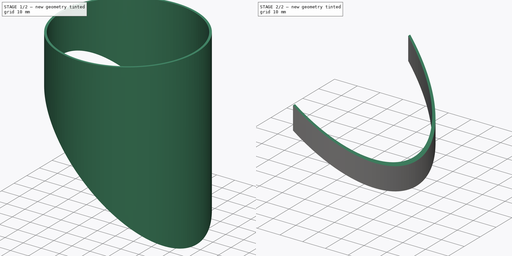
[diagram: build sequence overview — one tinted view per stage of 2, left to right]
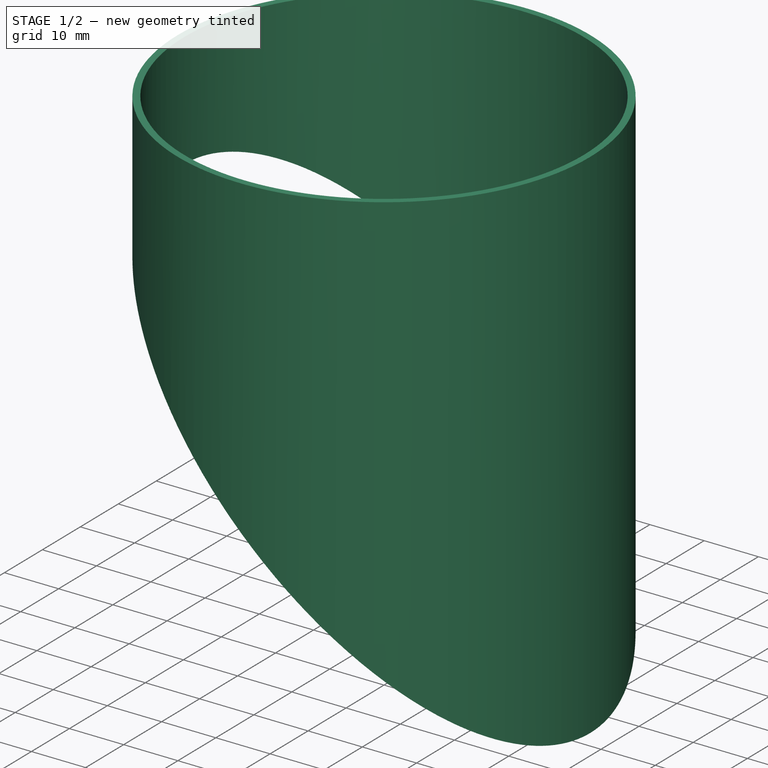
[diagram: stage 1 of 2 — iso view after this stage's code; geometry added in this stage tinted green]
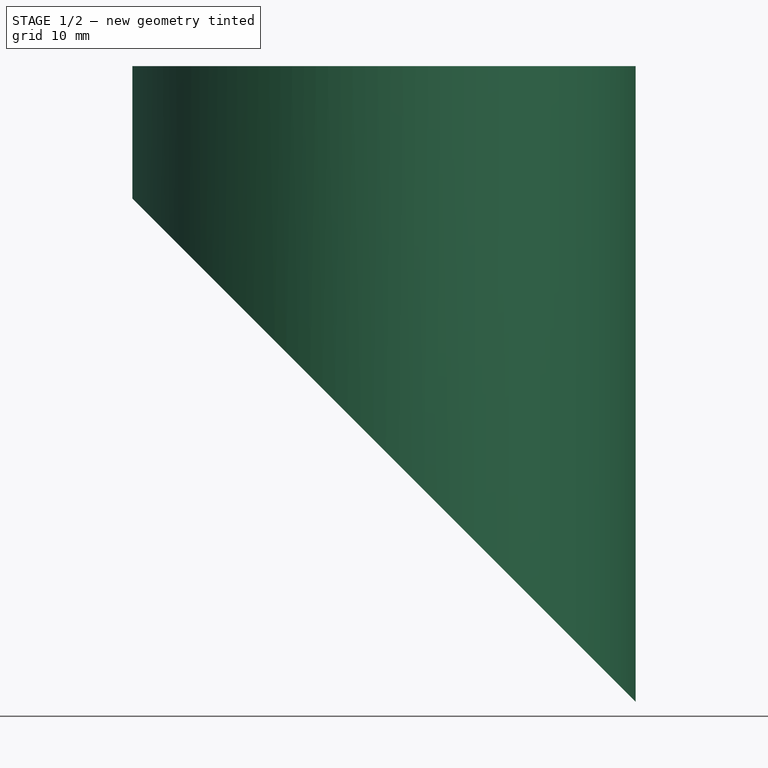
[diagram: stage 1 of 2 — front view after this stage's code; geometry added in this stage tinted green]
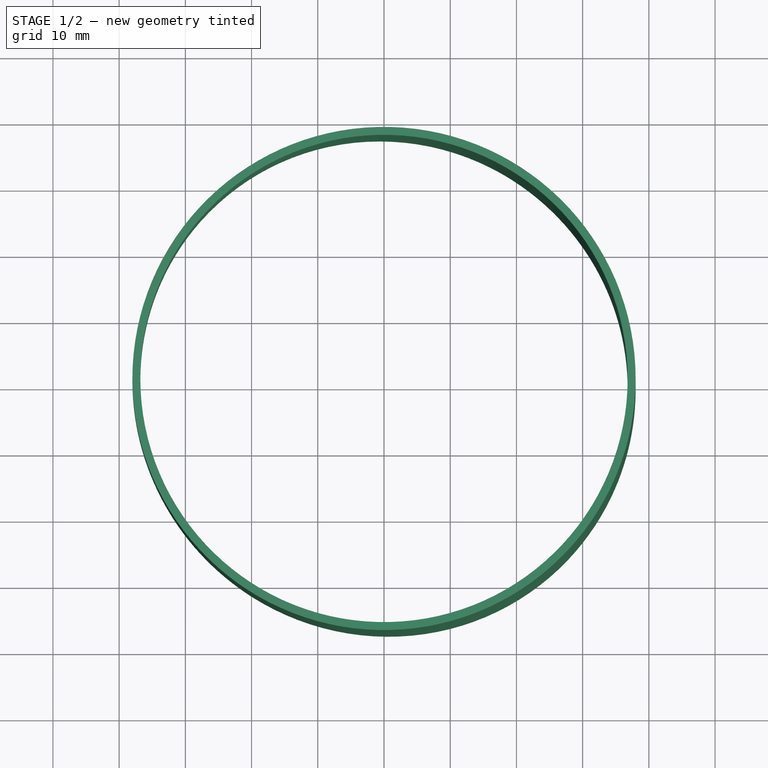
[diagram: stage 1 of 2 — top view after this stage's code; geometry added in this stage tinted green]
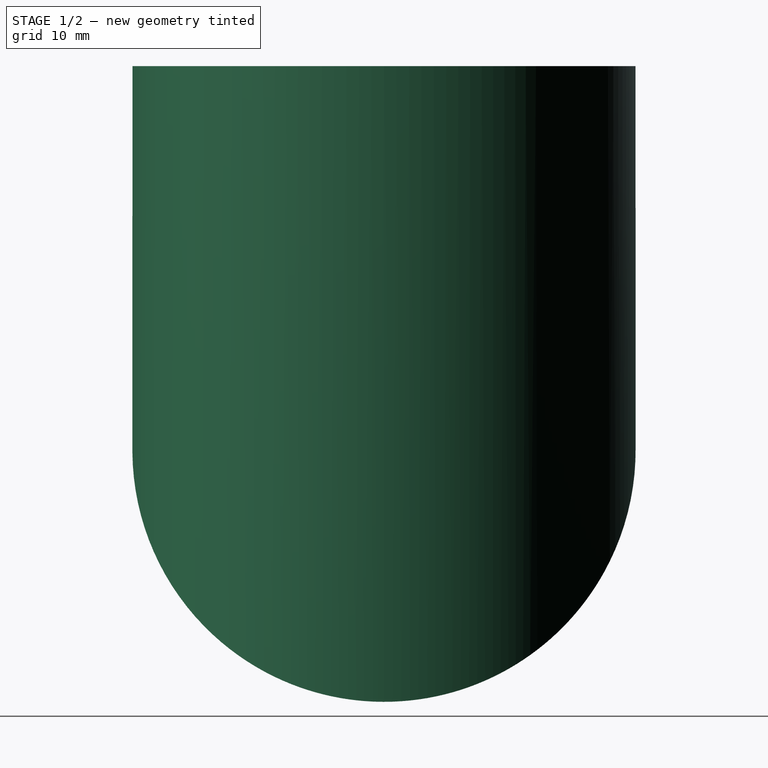
[diagram: stage 1 of 2 — right view after this stage's code; geometry added in this stage tinted green]
FCSTD DOCUMENT  (FreeCAD 0.20R28671 (Git))
Label: ConeExperiment
License: Creative Commons Attribution-NonCommercial-ShareAlike
LicenseURL: http://creativecommons.org/licenses/by-nc-sa/4.0/
objects: Sketcher::SketchObject×4, PartDesign::Plane×3, PartDesign::Pocket×3, PartDesign::Pad×1, PartDesign::Body×1
note: 16 computed .brp shape members not serialized (recipe doc carries the construction recipe); baked Part::Feature solids carry a one-line shape summary decoded from their .brp

FEATURE [Sketcher::SketchObject] Sketch
  FullyConstrained = true
  MapMode = 5
  Support = -> [XY_Plane]
  expr: Constraints[3] = .Constraints.R - 1.2mm
  sketch-geometry (2):
    g0: Circle CenterX=0 CenterY=0 CenterZ=0 NormalX=0 NormalY=0 NormalZ=1 AngleXU=0 Radius=38
    g1: Circle CenterX=0 CenterY=0 CenterZ=0 NormalX=0 NormalY=0 NormalZ=1 AngleXU=0 Radius=36.8
  constraints (4):
    c: Coincident(g0,g-1)
    c: Radius(g0) = 38  'R'
    c: Coincident(g1,g0)
    c: Radius(g1) = 36.8
FEATURE [PartDesign::Pad] Pad
  Direction = (1,1,1)
  Length = 96
  Length2 = 100
  Profile = -> Sketch
  Type = 0
  expr: Length = <<Sketch>>.Constraints.R * 2 + 20mm
FEATURE [PartDesign::Plane] DatumPlane
  AttachmentOffset = pos=(0,0,38) rot=(0,1,0;0.785398rad)
  Length = 105.675
  MapMode = 2
  Placement = pos=(0,0,38) rot=(0,1,0;0.785398rad)
  ResizeMode = 0
  Support = -> [XY_Plane]
  Width = 89.8129
  expr: .AttachmentOffset.Base.z = <<Sketch>>.Constraints.R
FEATURE [Sketcher::SketchObject] Sketch001
  FullyConstrained = true
  MapMode = 5
  Placement = pos=(0,0,38) rot=(0,1,0;0.785398rad)
  Support = -> [DatumPlane]
  expr: Constraints[6] = <<Sketch>>.Constraints.R + 1mm
  expr: Constraints[7] = sqrt(2) * <<Sketch>>.Constraints.R + 1mm
  sketch-geometry (5):
    g0: Ellipse CenterX=0 CenterY=0 CenterZ=0 NormalX=0 NormalY=0 NormalZ=1 MajorRadius=54.7401 MinorRadius=39 AngleXU=0
    g1: LineSegment StartX=54.7401 StartY=0 StartZ=0 EndX=-54.7401 EndY=0 EndZ=0
    g2: LineSegment StartX=0 StartY=39 StartZ=0 EndX=0 EndY=-39 EndZ=0
    g3: GeomPoint X=38.412 Y=0 Z=0
    g4: GeomPoint X=-38.412 Y=0 Z=0
  constraints (5):
    c: InternalAlignment(g1-g4 -> g0) x4
    c: PointOnObject(g1,g-1)
    c: Coincident(g0,g-1)
    c: DistanceY(g0,g2) = 39
    c: DistanceX(g1,g0) = 54.7401
FEATURE [PartDesign::Pocket] Pocket
  BaseFeature = -> Pad
  Direction = (0,0,-1)
  Length = 5
  Length2 = 5
  Profile = -> Sketch001
  ReferenceAxis = -> Pad [Edge2]
  Type = 1
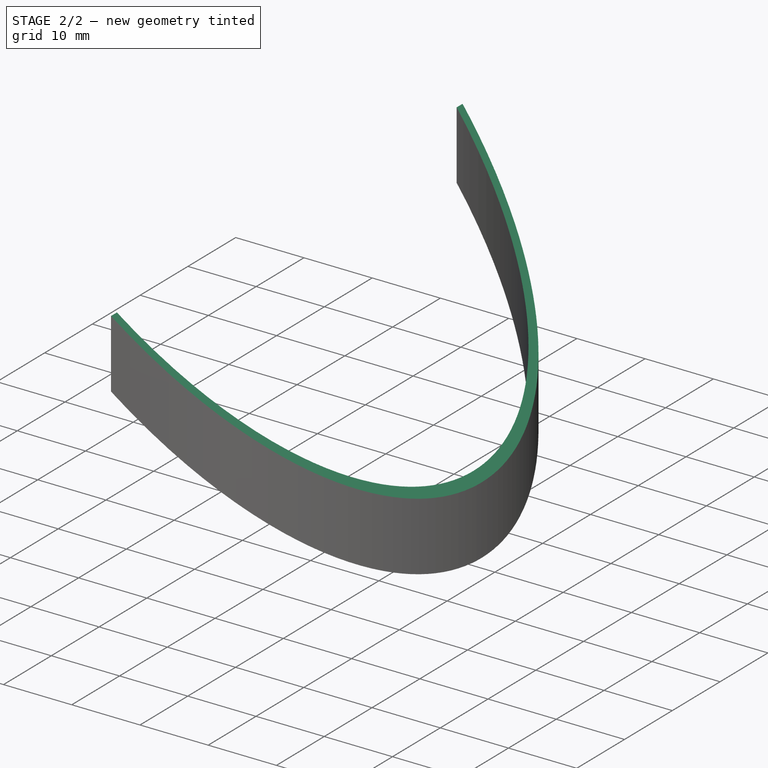
[diagram: stage 2 of 2 — iso view after this stage's code; geometry added in this stage tinted green]
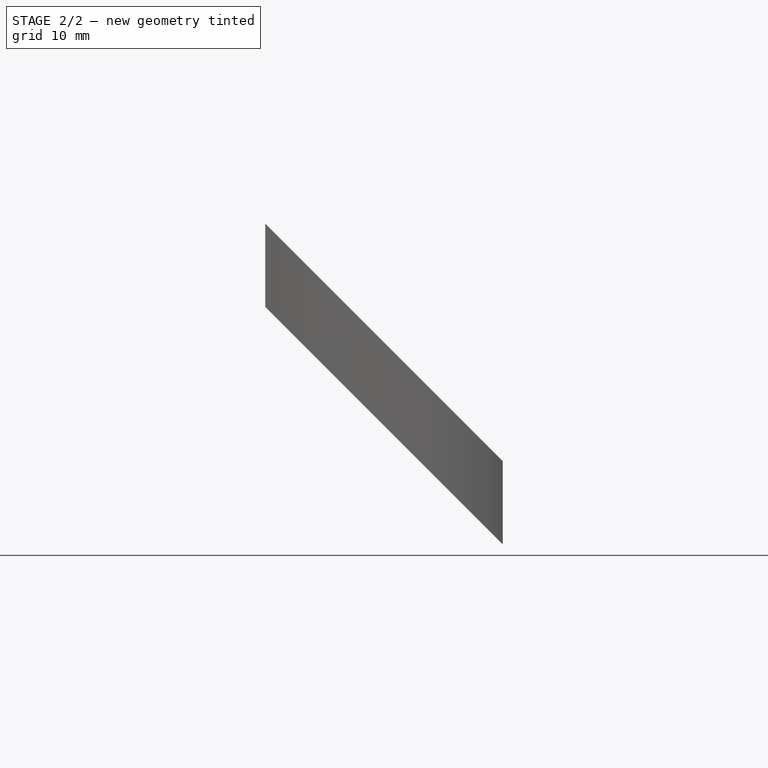
[diagram: stage 2 of 2 — front view after this stage's code; geometry added in this stage tinted green]
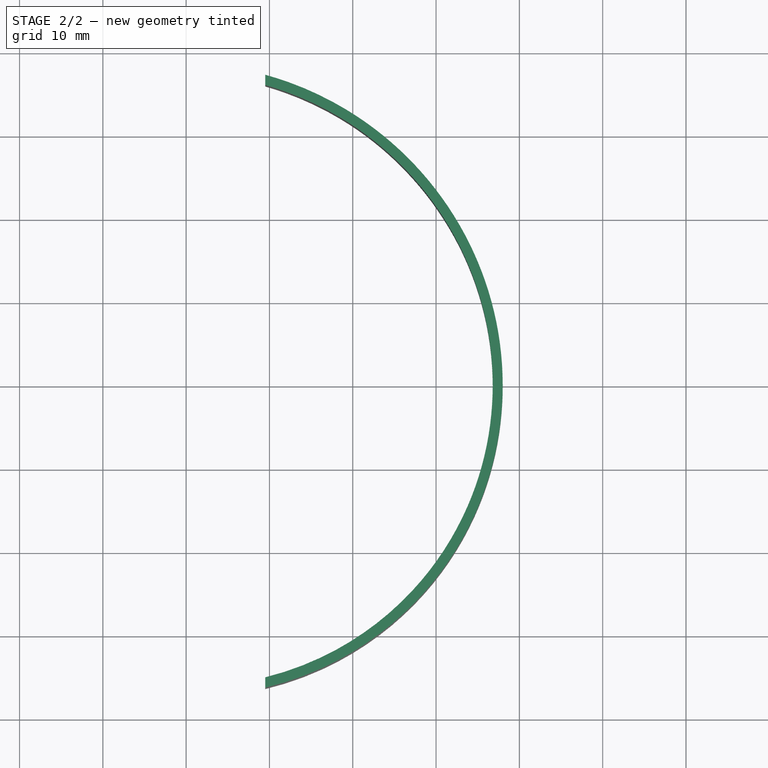
[diagram: stage 2 of 2 — top view after this stage's code; geometry added in this stage tinted green]
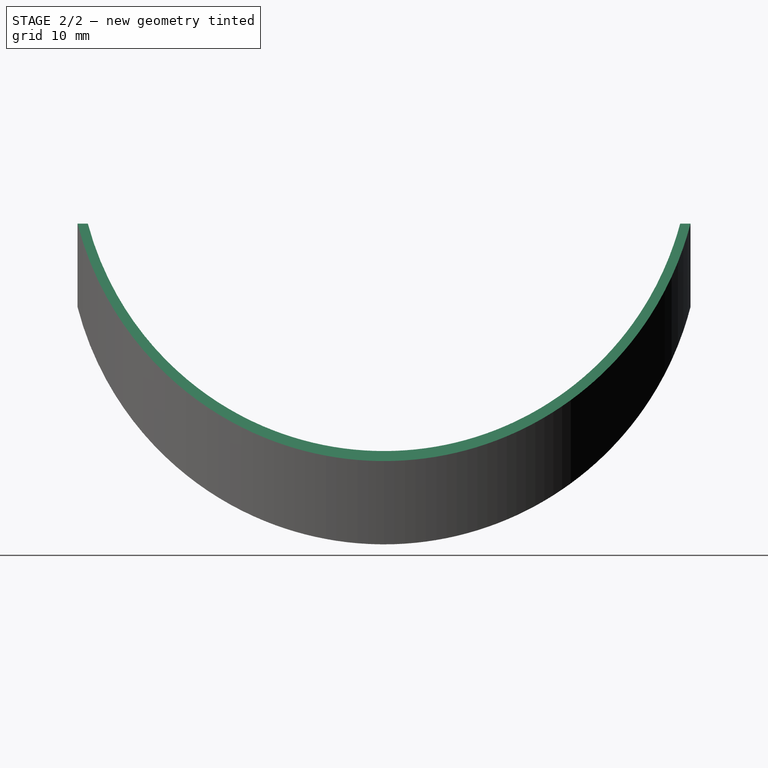
[diagram: stage 2 of 2 — right view after this stage's code; geometry added in this stage tinted green]
FEATURE [PartDesign::Plane] DatumPlane001
  AttachmentOffset = pos=(0,0,48) rot=(0,1,0;0.785398rad)
  Length = 105.675
  MapMode = 2
  Placement = pos=(0,0,48) rot=(0,1,0;0.785398rad)
  ResizeMode = 0
  Support = -> [XY_Plane]
  Width = 89.8129
  expr: .AttachmentOffset.Base.z = <<Sketch>>.Constraints.R + 10mm
FEATURE [Sketcher::SketchObject] Sketch002
  FullyConstrained = true
  MapMode = 5
  Placement = pos=(0,0,48) rot=(0,1,0;0.785398rad)
  Support = -> [DatumPlane001]
  expr: Constraints[6] = <<Sketch>>.Constraints.R + 1mm
  expr: Constraints[7] = sqrt(2) * <<Sketch>>.Constraints.R + 1mm
  sketch-geometry (5):
    g0: Ellipse CenterX=0 CenterY=0 CenterZ=0 NormalX=0 NormalY=0 NormalZ=1 MajorRadius=54.7401 MinorRadius=39 AngleXU=0
    g1: LineSegment StartX=54.7401 StartY=0 StartZ=0 EndX=-54.7401 EndY=0 EndZ=0
    g2: LineSegment StartX=0 StartY=39 StartZ=0 EndX=0 EndY=-39 EndZ=0
    g3: GeomPoint X=38.412 Y=0 Z=0
    g4: GeomPoint X=-38.412 Y=0 Z=0
  constraints (5):
    c: InternalAlignment(g1-g4 -> g0) x4
    c: PointOnObject(g1,g-1)
    c: Coincident(g0,g-1)
    c: DistanceY(g0,g2) = 39
    c: DistanceX(g1,g0) = 54.7401
FEATURE [PartDesign::Pocket] Pocket001
  BaseFeature = -> Pocket
  Direction = (0,0,-1)
  Length = 5
  Length2 = 5
  Profile = -> Sketch002
  ReferenceAxis = -> Pad [Edge2]
  Reversed = true
  Type = 1
FEATURE [PartDesign::Plane] DatumPlane002
  AttachmentOffset = pos=(0,0,9.5) rot=(0,0,1;0rad)
  Length = 87.2582
  MapMode = 5
  Placement = pos=(9.5,-2.1e-15,2.1e-15) rot=(0.57735,0.57735,0.57735;2.0944rad)
  ResizeMode = 0
  Support = -> [YZ_Plane]
  Width = 77.1715
  expr: .AttachmentOffset.Base.z = <<Sketch>>.Constraints.R / 4
FEATURE [Sketcher::SketchObject] Sketch003
  FullyConstrained = true
  MapMode = 5
  Placement = pos=(9.5,-2.1e-15,2.1e-15) rot=(0.57735,0.57735,0.57735;2.0944rad)
  Support = -> [DatumPlane002]
  expr: Constraints[10] = <<Pad>>.Length
  expr: Constraints[9] = <<Sketch>>.Constraints.R * 2
  sketch-geometry (4):
    g0: LineSegment StartX=-38 StartY=0 StartZ=0 EndX=38 EndY=1.1396e-12 EndZ=0
    g1: LineSegment StartX=38 StartY=1.1396e-12 StartZ=0 EndX=38 EndY=96 EndZ=0
    g2: LineSegment StartX=38 StartY=96 StartZ=0 EndX=-38 EndY=96 EndZ=0
    g3: LineSegment StartX=-38 StartY=96 StartZ=0 EndX=-38 EndY=0 EndZ=0
  constraints (11):
    c: Coincident(g0,g1)
    c: Coincident(g1,g2)
    c: Coincident(g2,g3)
    c: Coincident(g3,g0)
    c: Horizontal(g2)
    c: Vertical(g1)
    c: Vertical(g3)
    c: PointOnObject(g0,g-1)
    c: Symmetric(g0,g0,g-1)
    c: DistanceX(g2,g2) = 76
    c: DistanceY(g0,g2) = 96
FEATURE [PartDesign::Pocket] Pocket002
  BaseFeature = -> Pocket001
  Direction = (-1,1e-16,-1e-16)
  Length = 5
  Length2 = 5
  Profile = -> Sketch003
  ReferenceAxis = -> Sketch003 [N_Axis]
  Type = 1
FEATURE [PartDesign::Body] Body
  Group = -> [Sketch,Pad,DatumPlane,Sketch001,Pocket,DatumPlane001,Sketch002,Pocket001,DatumPlane002,Sketch003,Pocket002]
  Origin = -> Origin
  Tip = -> Pocket002
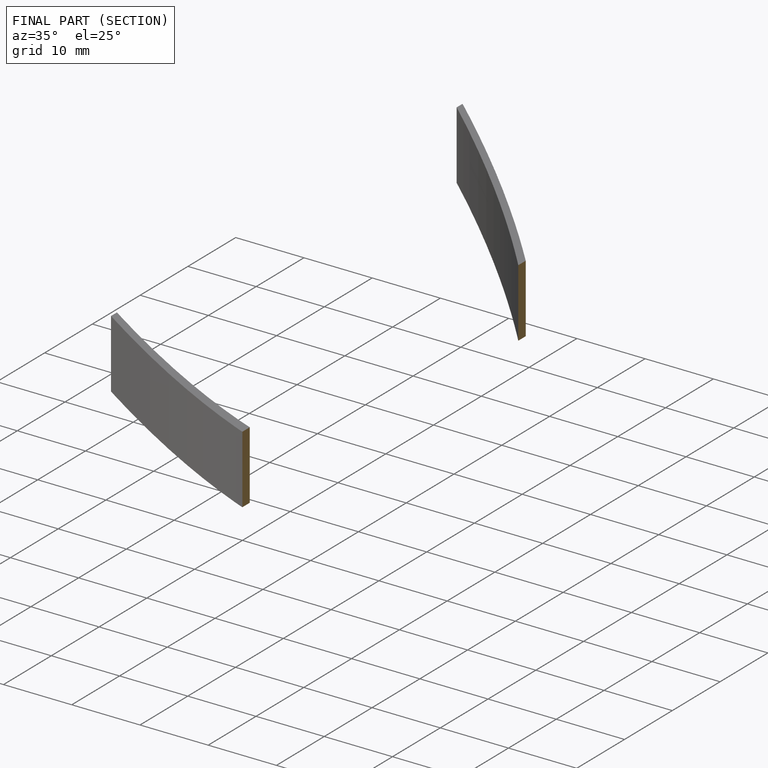
[diagram: finished part — half-section view (interior)]
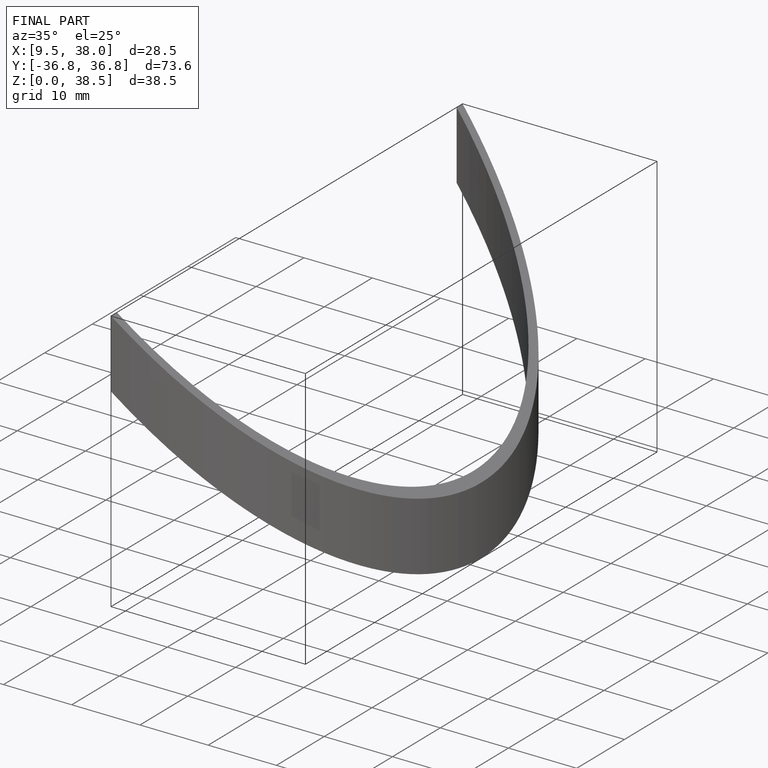
[diagram: finished part — iso view with bounding-box wireframe]
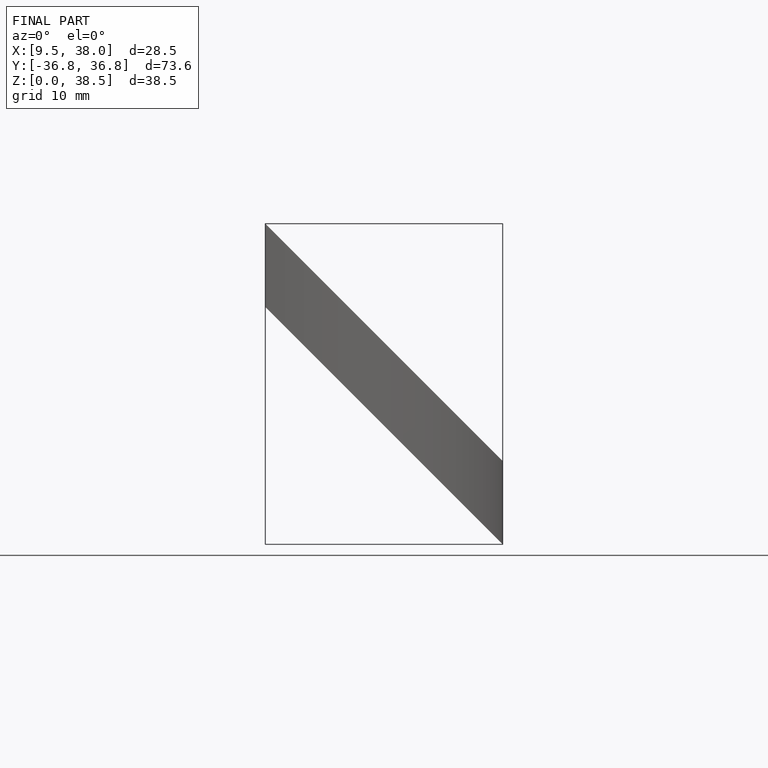
[diagram: finished part — front view with bounding-box wireframe]
